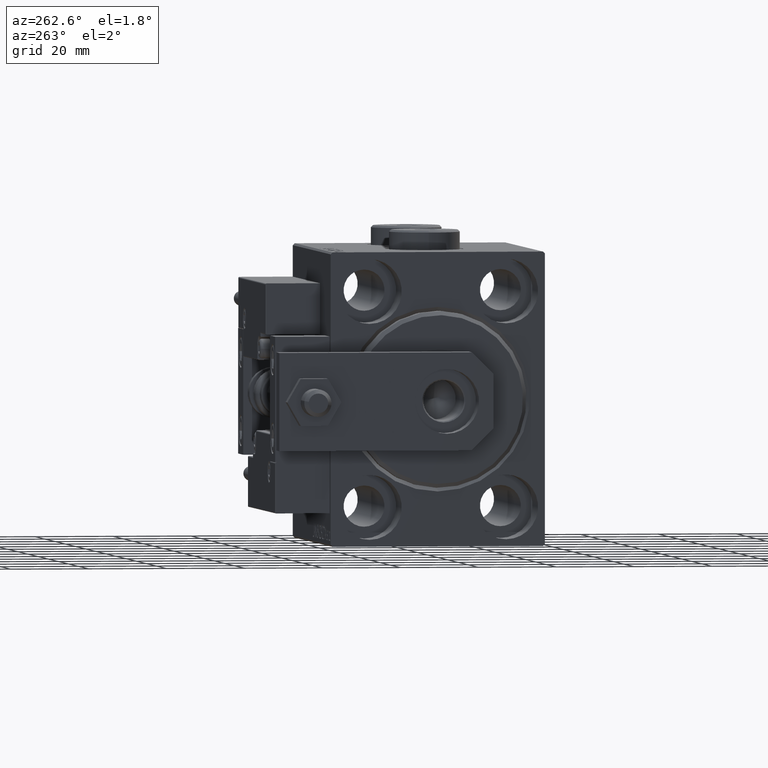
[diagram: clean part render]
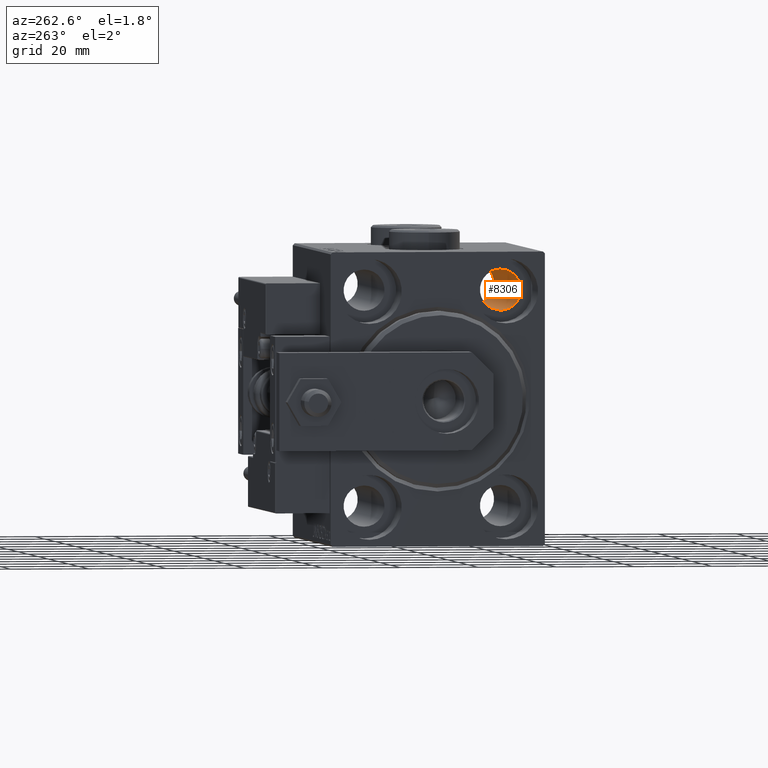
[diagram: same view with one face highlighted and labeled with its STEP entity id]
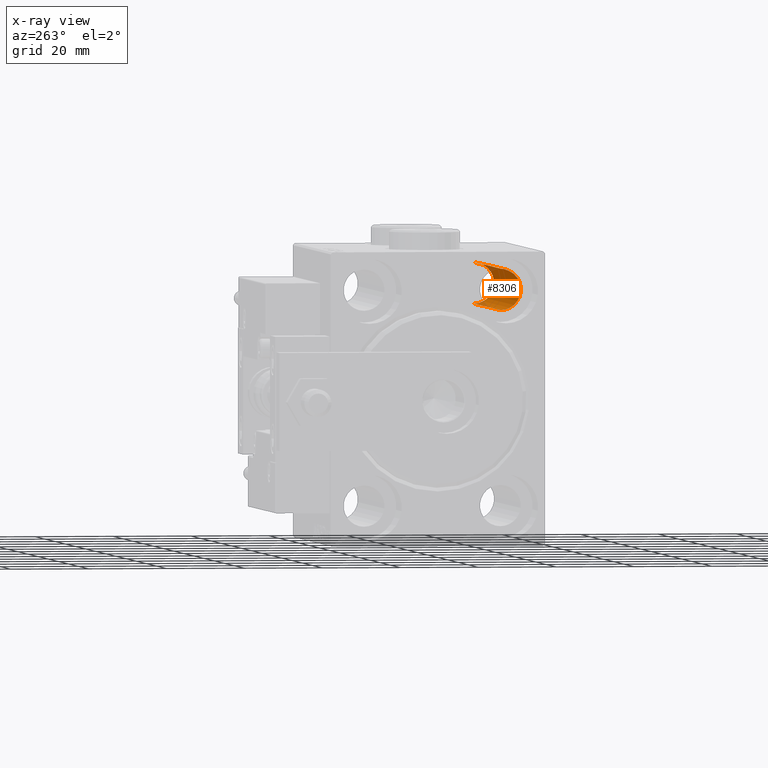
[diagram: x-ray of the same camera — body ghosted, the highlighted face saturated]
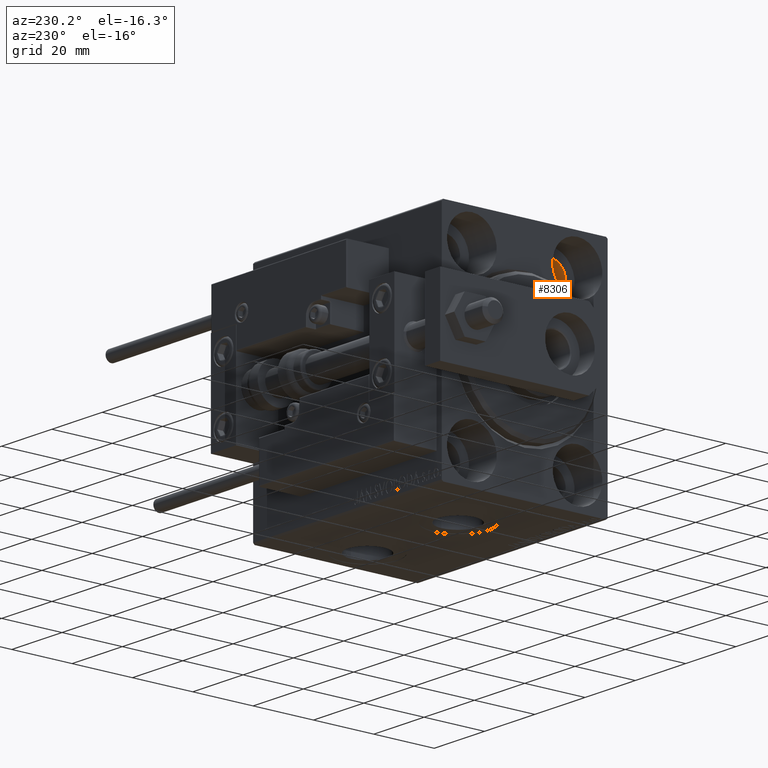
[diagram: same view with one face highlighted and labeled with its STEP entity id]
A machine part, auxiliary view. The second image highlights one B-rep face of the part: STEP entity #8306.
The next image is the same camera in x-ray: the body ghosted, the highlighted face saturated — about 7% of this face is hidden behind the body in this view.
A second angle (auxiliary view) of the same face is appended — the face is thin or edge-on in the first view.
In plain terms, the highlighted cylindrical surface (edge-blend (fillet) strip) has radius 5.25 mm, axis along (-1, -0, -0).
Its self-contained STEP definition (entity closure, byte-faithful):
#1813 = CARTESIAN_POINT ( 'NONE',  ( 64.00000000000000000, -17.49999999999999645, 32.74999999999999289 ) ) ;
#2162 = EDGE_LOOP ( 'NONE', ( #14123, #43821, #7588, #4227 ) ) ;
#3880 = EDGE_CURVE ( 'NONE', #14710, #49904, #38979, .T. ) ;
#4227 = ORIENTED_EDGE ( 'NONE', *, *, #6435, .F. ) ;
#5611 = DIRECTION ( 'NONE',  ( 0.000000000000000000, 0.000000000000000000, 1.000000000000000000 ) ) ;
#5740 = CYLINDRICAL_SURFACE ( 'NONE', #8321, 5.249999999999997335 ) ;
#6435 = EDGE_CURVE ( 'NONE', #44882, #49904, #21231, .T. ) ;
#7588 = ORIENTED_EDGE ( 'NONE', *, *, #3880, .T. ) ;
#8306 = ADVANCED_FACE ( 'NONE', ( #34412 ), #5740, .F. ) ;
#8321 = AXIS2_PLACEMENT_3D ( 'NONE', #13819, #29461, #30493 ) ;
#10263 = VERTEX_POINT ( 'NONE', #18848 ) ;
#12944 = DIRECTION ( 'NONE',  ( 0.000000000000000000, 0.000000000000000000, -1.000000000000000000 ) ) ;
#13227 = LINE ( 'NONE', #45028, #37711 ) ;
#13819 = CARTESIAN_POINT ( 'NONE',  ( 75.00000000000000000, -17.49999999999999645, 27.49999999999999645 ) ) ;
#14123 = ORIENTED_EDGE ( 'NONE', *, *, #46626, .F. ) ;
#14710 = VERTEX_POINT ( 'NONE', #16363 ) ;
#16363 = CARTESIAN_POINT ( 'NONE',  ( 10.99999999999999645, -17.49999999999999645, 22.25000000000000000 ) ) ;
#18192 = AXIS2_PLACEMENT_3D ( 'NONE', #37166, #44718, #5611 ) ;
#18796 = EDGE_CURVE ( 'NONE', #10263, #14710, #13227, .T. ) ;
#18848 = CARTESIAN_POINT ( 'NONE',  ( 64.00000000000000000, -17.49999999999999645, 22.25000000000000000 ) ) ;
#21231 = LINE ( 'NONE', #44938, #30764 ) ;
#21549 = CARTESIAN_POINT ( 'NONE',  ( 64.00000000000000000, -17.49999999999999645, 27.49999999999999645 ) ) ;
#27318 = AXIS2_PLACEMENT_3D ( 'NONE', #21549, #37448, #12944 ) ;
#29461 = DIRECTION ( 'NONE',  ( -1.000000000000000000, -0.000000000000000000, -0.000000000000000000 ) ) ;
#30493 = DIRECTION ( 'NONE',  ( 0.000000000000000000, 0.000000000000000000, 1.000000000000000000 ) ) ;
#30764 = VECTOR ( 'NONE', #37127, 1000.000000000000000 ) ;
#34412 = FACE_OUTER_BOUND ( 'NONE', #2162, .T. ) ;
#36194 = DIRECTION ( 'NONE',  ( -1.000000000000000000, -0.000000000000000000, -0.000000000000000000 ) ) ;
#37127 = DIRECTION ( 'NONE',  ( -1.000000000000000000, -0.000000000000000000, -0.000000000000000000 ) ) ;
#37166 = CARTESIAN_POINT ( 'NONE',  ( 10.99999999999999645, -17.49999999999999645, 27.49999999999999645 ) ) ;
#37448 = DIRECTION ( 'NONE',  ( -1.000000000000000000, -0.000000000000000000, -0.000000000000000000 ) ) ;
#37711 = VECTOR ( 'NONE', #36194, 1000.000000000000000 ) ;
#38979 = CIRCLE ( 'NONE', #18192, 5.249999999999997335 ) ;
#39807 = CIRCLE ( 'NONE', #27318, 5.249999999999997335 ) ;
#43821 = ORIENTED_EDGE ( 'NONE', *, *, #18796, .T. ) ;
#44718 = DIRECTION ( 'NONE',  ( -1.000000000000000000, 0.000000000000000000, 0.000000000000000000 ) ) ;
#44882 = VERTEX_POINT ( 'NONE', #1813 ) ;
#44938 = CARTESIAN_POINT ( 'NONE',  ( 75.00000000000000000, -17.49999999999999645, 32.74999999999999289 ) ) ;
#45028 = CARTESIAN_POINT ( 'NONE',  ( 75.00000000000000000, -17.49999999999999645, 22.25000000000000000 ) ) ;
#45034 = CARTESIAN_POINT ( 'NONE',  ( 10.99999999999999645, -17.49999999999999645, 32.74999999999999289 ) ) ;
#46626 = EDGE_CURVE ( 'NONE', #10263, #44882, #39807, .T. ) ;
#49904 = VERTEX_POINT ( 'NONE', #45034 ) ;